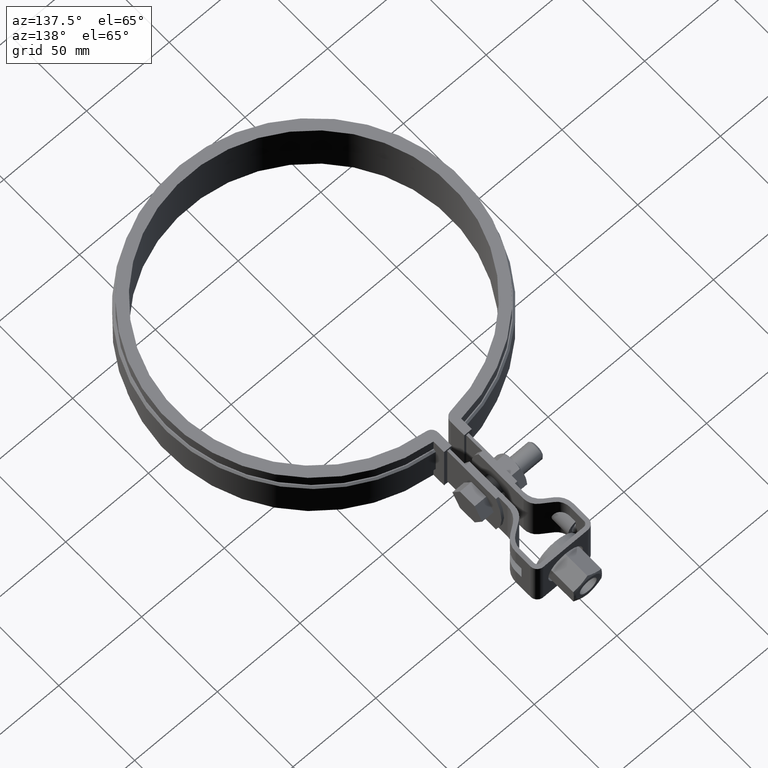
[diagram: clean part render]
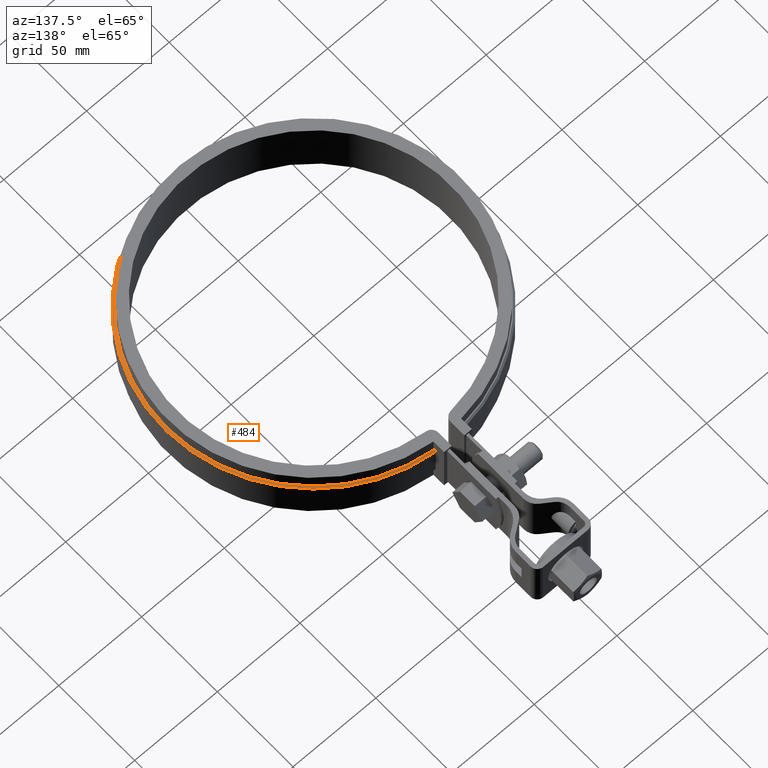
[diagram: same view with one face highlighted and labeled with its STEP entity id]
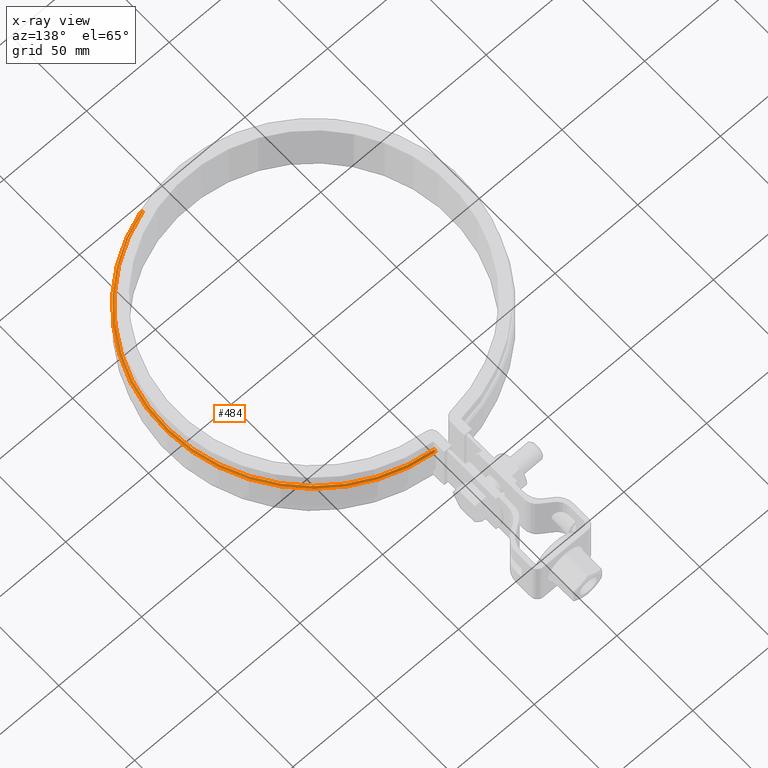
[diagram: x-ray of the same camera — body ghosted, the highlighted face saturated]
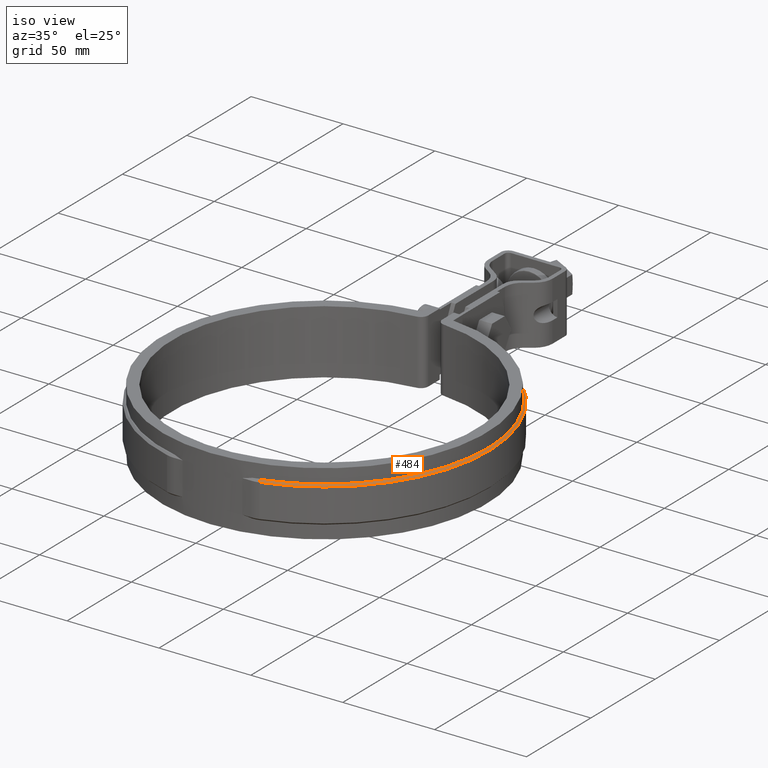
[diagram: same view with one face highlighted and labeled with its STEP entity id]
A machine part, auxiliary view. The second image highlights one B-rep face of the part: STEP entity #484.
The next image is the same camera in x-ray: the body ghosted, the highlighted face saturated — about 0% of this face is hidden behind the body in this view.
A second angle (iso view) of the same face is appended — the face is thin or edge-on in the first view.
In plain terms, the highlighted conical surface has half-angle 45 deg.
Its self-contained STEP definition (entity closure, byte-faithful):
#484 = ADVANCED_FACE( '', ( #866 ), #867, .T. );
#866 = FACE_OUTER_BOUND( '', #2001, .T. );
#867 = CONICAL_SURFACE( '', #2002, 89.0000000000000, 0.785398163397441 );
#2001 = EDGE_LOOP( '', ( #4886, #4887, #4888, #4889 ) );
#2002 = AXIS2_PLACEMENT_3D( '', #4890, #4891, #4892 );
#4886 = ORIENTED_EDGE( '', *, *, #5418, .F. );
#4887 = ORIENTED_EDGE( '', *, *, #5388, .F. );
#4888 = ORIENTED_EDGE( '', *, *, #5422, .F. );
#4889 = ORIENTED_EDGE( '', *, *, #5398, .F. );
#4890 = CARTESIAN_POINT( '', ( 1.38777878078145E-014, -4.16333634234434E-014, -6.00000000000000 ) );
#4891 = DIRECTION( '', ( 0.000000000000000, 0.000000000000000, -1.00000000000000 ) );
#4892 = DIRECTION( '', ( -1.00000000000000, 0.000000000000000, 0.000000000000000 ) );
#5388 = EDGE_CURVE( '', #6152, #6154, #6155, .T. );
#5398 = EDGE_CURVE( '', #6170, #6172, #6173, .F. );
#5418 = EDGE_CURVE( '', #6154, #6170, #6198, .T. );
#5422 = EDGE_CURVE( '', #6172, #6152, #6202, .T. );
#6152 = VERTEX_POINT( '', #9395 );
#6154 = VERTEX_POINT( '', #9397 );
#6155 = CIRCLE( '', #9398, 89.0000000000000 );
#6170 = VERTEX_POINT( '', #9419 );
#6172 = VERTEX_POINT( '', #9422 );
#6173 = CIRCLE( '', #9423, 90.0000000000000 );
#6198 = B_SPLINE_CURVE_WITH_KNOTS( '', 3, ( #9460, #9461, #9462, #9463 ), .UNSPECIFIED., .F., .F., ( 4, 4 ), ( 0.000000000000000, 0.00141735220717066 ), .UNSPECIFIED. );
#6202 = LINE( '', #9470, #9471 );
#9395 = CARTESIAN_POINT( '', ( 24.9200000000000, -85.4400000000000, -6.00000000000000 ) );
#9397 = CARTESIAN_POINT( '', ( 8.40000000000002, 88.6027087622043, -6.00000000000000 ) );
#9398 = AXIS2_PLACEMENT_3D( '', #10092, #10093, #10094 );
#9419 = CARTESIAN_POINT( '', ( 8.39999999999997, 89.6071425724534, -7.00000000000001 ) );
#9422 = CARTESIAN_POINT( '', ( 25.2000000000000, -86.4000000000000, -7.00000000000001 ) );
#9423 = AXIS2_PLACEMENT_3D( '', #10108, #10109, #10110 );
#9460 = CARTESIAN_POINT( '', ( 8.40000000000002, 88.6027087622043, -6.00000000000000 ) );
#9461 = CARTESIAN_POINT( '', ( 8.40000000000002, 88.9375283537308, -6.33332497478547 ) );
#9462 = CARTESIAN_POINT( '', ( 8.40000000000000, 89.2723395311518, -6.66665840160440 ) );
#9463 = CARTESIAN_POINT( '', ( 8.40000000000000, 89.6071425724534, -7.00000000000000 ) );
#9470 = CARTESIAN_POINT( '', ( 25.2000000000000, -86.4000000000000, -7.00000000000000 ) );
#9471 = VECTOR( '', #10150, 1000.00000000000 );
#10092 = CARTESIAN_POINT( '', ( 1.38777878078145E-014, -4.16333634234434E-014, -6.00000000000000 ) );
#10093 = DIRECTION( '', ( 0.000000000000000, 0.000000000000000, 1.00000000000000 ) );
#10094 = DIRECTION( '', ( 1.00000000000000, 0.000000000000000, 0.000000000000000 ) );
#10108 = CARTESIAN_POINT( '', ( 1.38777878078145E-014, -4.16333634234434E-014, -7.00000000000000 ) );
#10109 = DIRECTION( '', ( 0.000000000000000, 0.000000000000000, 1.00000000000000 ) );
#10110 = DIRECTION( '', ( 1.00000000000000, 0.000000000000000, 0.000000000000000 ) );
#10150 = DIRECTION( '', ( -0.197989898732231, 0.678822509939081, 0.707106781186553 ) );